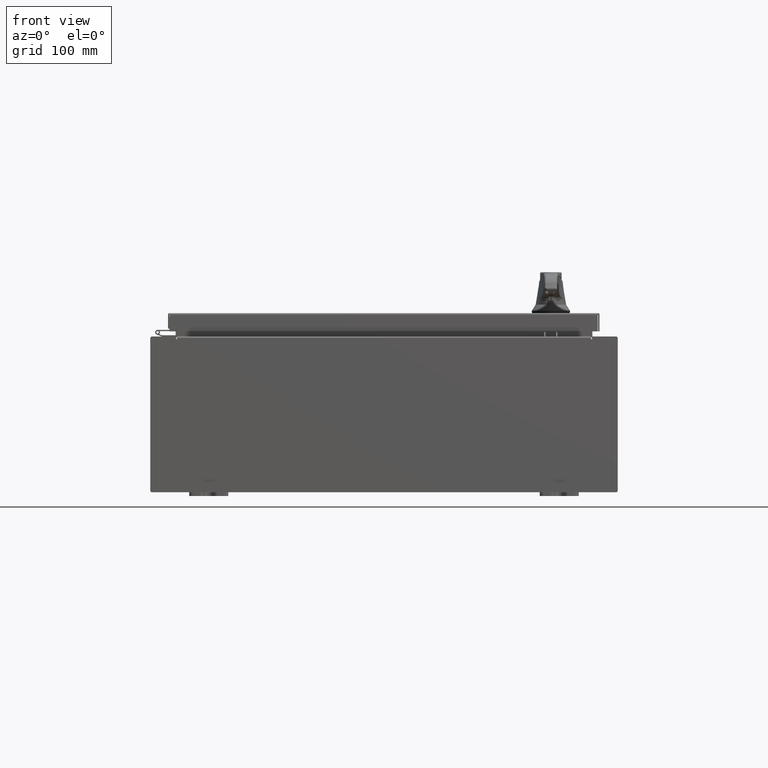
[diagram: clean part render]
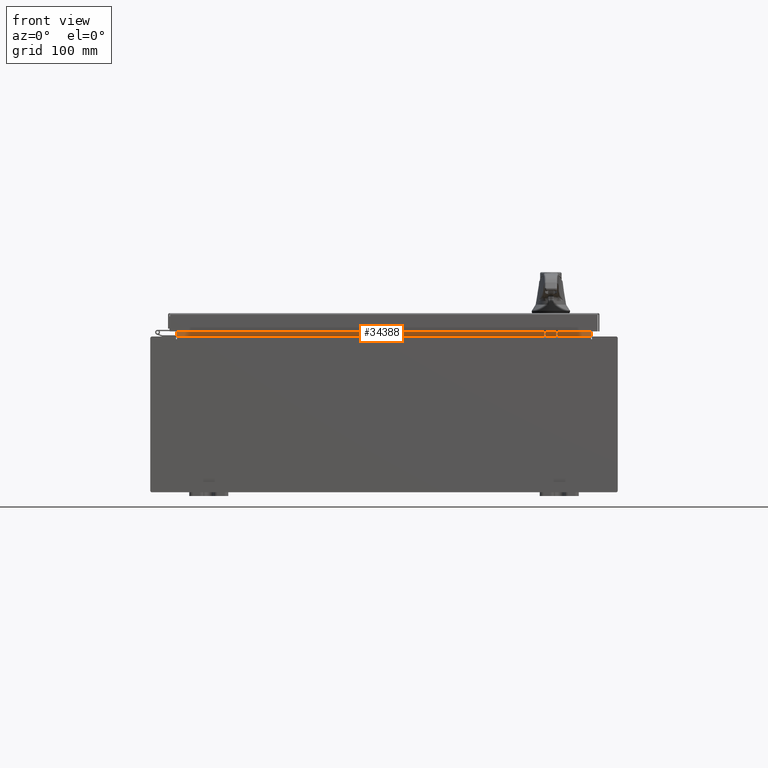
[diagram: same view with one face highlighted and labeled with its STEP entity id]
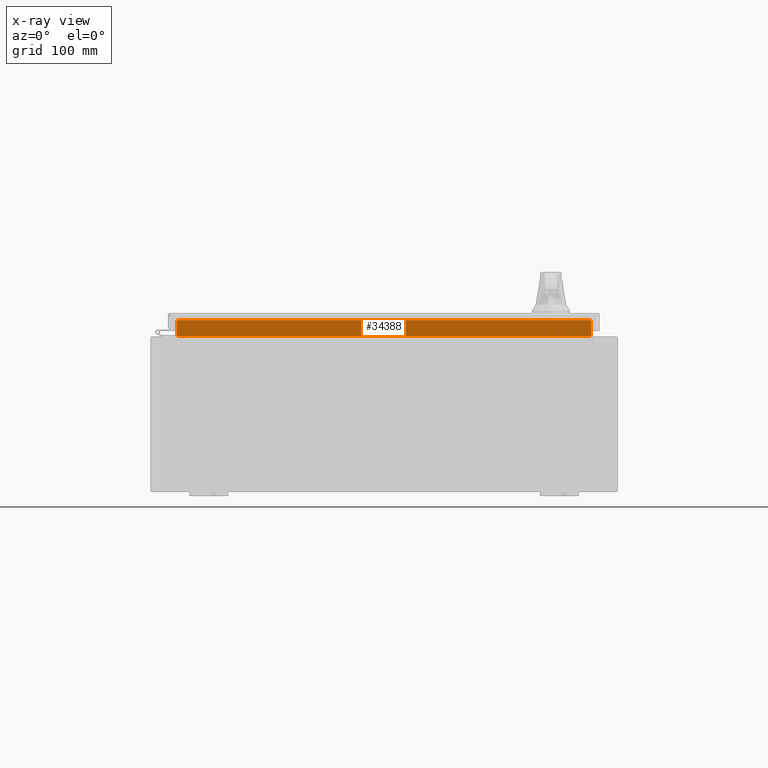
[diagram: x-ray of the same camera — body ghosted, the highlighted face saturated]
A machine part, front view. The second image highlights one B-rep face of the part: STEP entity #34388.
The next image is the same camera in x-ray: the body ghosted, the highlighted face saturated — about 0% of this face is hidden behind the body in this view.
In plain terms, the highlighted planar face has unit normal (0, -1, 0).
Its self-contained STEP definition (entity closure, byte-faithful):
#1256 = ORIENTED_EDGE ( 'NONE', *, *, #50291, .F. ) ;
#6956 = VECTOR ( 'NONE', #41417, 39.37007874015748100 ) ;
#7896 = EDGE_CURVE ( 'NONE', #40317, #64129, #97541, .T. ) ;
#8987 = VECTOR ( 'NONE', #64376, 39.37007874015748100 ) ;
#9534 = EDGE_CURVE ( 'NONE', #64129, #61851, #49305, .T. ) ;
#10728 = VERTEX_POINT ( 'NONE', #73161 ) ;
#19853 = DIRECTION ( 'NONE',  ( 0.0000000000000000000, -0.0000000000000000000, 1.000000000000000000 ) ) ;
#20004 = DIRECTION ( 'NONE',  ( 1.000000000000000000, 0.0000000000000000000, -2.568202152506545800E-017 ) ) ;
#21546 = LINE ( 'NONE', #76171, #42135 ) ;
#21596 = ORIENTED_EDGE ( 'NONE', *, *, #9534, .F. ) ;
#23094 = ORIENTED_EDGE ( 'NONE', *, *, #101082, .F. ) ;
#34388 = ADVANCED_FACE ( 'NONE', ( #97703 ), #54731, .T. ) ;
#37747 = ORIENTED_EDGE ( 'NONE', *, *, #7896, .F. ) ;
#40071 = CARTESIAN_POINT ( 'NONE',  ( -10.63720000000000200, -1.300299999999999300, 4.837600000000003700 ) ) ;
#40317 = VERTEX_POINT ( 'NONE', #40071 ) ;
#41417 = DIRECTION ( 'NONE',  ( -0.0000000000000000000, -0.0000000000000000000, -1.000000000000000000 ) ) ;
#42135 = VECTOR ( 'NONE', #50111, 39.37007874015748100 ) ;
#45206 = CARTESIAN_POINT ( 'NONE',  ( 0.0000000000000000000, -1.300299999999999800, 0.0000000000000000000 ) ) ;
#46777 = CARTESIAN_POINT ( 'NONE',  ( 10.63720000000000200, -1.300299999999999300, 4.837600000000003700 ) ) ;
#49305 = LINE ( 'NONE', #107749, #69903 ) ;
#50111 = DIRECTION ( 'NONE',  ( -0.0000000000000000000, -0.0000000000000000000, 1.000000000000000000 ) ) ;
#50291 = EDGE_CURVE ( 'NONE', #10728, #40317, #55556, .T. ) ;
#51148 = EDGE_LOOP ( 'NONE', ( #37747, #1256, #23094, #21596 ) ) ;
#54731 = PLANE ( 'NONE',  #105077 ) ;
#55556 = LINE ( 'NONE', #46777, #8987 ) ;
#61203 = CARTESIAN_POINT ( 'NONE',  ( -10.63720000000000400, -1.300299999999999800, 4.013000000000003500 ) ) ;
#61851 = VERTEX_POINT ( 'NONE', #91478 ) ;
#64129 = VERTEX_POINT ( 'NONE', #61203 ) ;
#64376 = DIRECTION ( 'NONE',  ( -1.000000000000000000, -0.0000000000000000000, -0.0000000000000000000 ) ) ;
#69903 = VECTOR ( 'NONE', #20004, 39.37007874015748100 ) ;
#72334 = DIRECTION ( 'NONE',  ( 0.0000000000000000000, 1.000000000000000000, 0.0000000000000000000 ) ) ;
#73161 = CARTESIAN_POINT ( 'NONE',  ( 10.63720000000000200, -1.300299999999999800, 4.837600000000003700 ) ) ;
#76171 = CARTESIAN_POINT ( 'NONE',  ( 10.63720000000000200, -1.300299999999999800, 4.925300000000004500 ) ) ;
#91478 = CARTESIAN_POINT ( 'NONE',  ( 10.63720000000000400, -1.300299999999999800, 4.013000000000003500 ) ) ;
#97541 = LINE ( 'NONE', #102749, #6956 ) ;
#97703 = FACE_OUTER_BOUND ( 'NONE', #51148, .T. ) ;
#101082 = EDGE_CURVE ( 'NONE', #61851, #10728, #21546, .T. ) ;
#102749 = CARTESIAN_POINT ( 'NONE',  ( -10.63720000000000200, -1.300299999999999800, 4.000000000000004400 ) ) ;
#105077 = AXIS2_PLACEMENT_3D ( 'NONE', #45206, #72334, #19853 ) ;
#107749 = CARTESIAN_POINT ( 'NONE',  ( -10.63720000000000200, -1.300299999999999800, 4.013000000000003500 ) ) ;